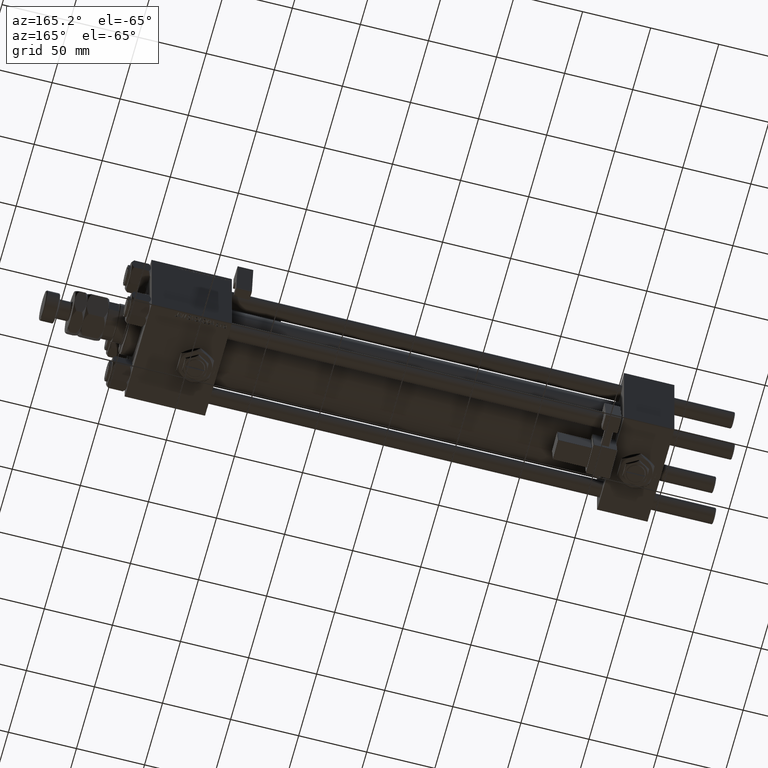
[diagram: clean part render]
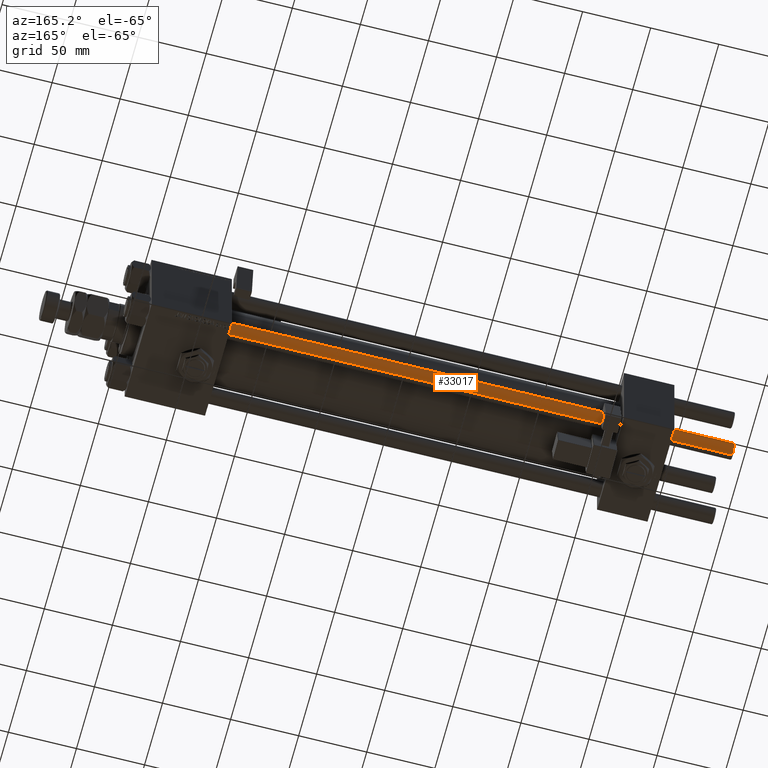
[diagram: same view with one face highlighted and labeled with its STEP entity id]
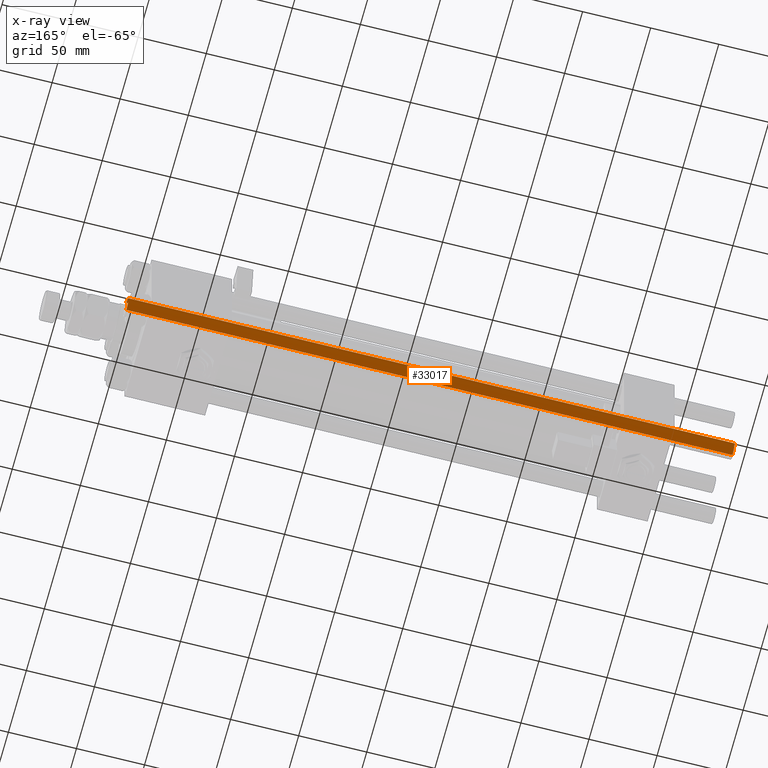
[diagram: x-ray of the same camera — body ghosted, the highlighted face saturated]
A machine part, auxiliary view. The second image highlights one B-rep face of the part: STEP entity #33017.
The next image is the same camera in x-ray: the body ghosted, the highlighted face saturated — about 0% of this face is hidden behind the body in this view.
In plain terms, the highlighted cylindrical surface (edge-blend (fillet) strip) has radius 6 mm, axis along (1, 0, -0).
Its self-contained STEP definition (entity closure, byte-faithful):
#24 = DIRECTION ( 'NONE',  ( -0.000000000000000000, -0.000000000000000000, -1.000000000000000000 ) ) ;
#499 = EDGE_CURVE ( 'NONE', #27468, #15181, #42069, .T. ) ;
#1936 = CARTESIAN_POINT ( 'NONE',  ( 0.000000000000000000, 0.000000000000000000, 445.5000000000003411 ) ) ;
#2968 = VERTEX_POINT ( 'NONE', #33578 ) ;
#3120 = DIRECTION ( 'NONE',  ( -0.000000000000000000, -0.000000000000000000, 1.000000000000000000 ) ) ;
#6805 = CARTESIAN_POINT ( 'NONE',  ( -6.000000000000000888, 0.000000000000000000, 0.5000000000003890221 ) ) ;
#7324 = VECTOR ( 'NONE', #24, 1000.000000000000000 ) ;
#7946 = AXIS2_PLACEMENT_3D ( 'NONE', #24249, #3120, #37447 ) ;
#8438 = ORIENTED_EDGE ( 'NONE', *, *, #499, .T. ) ;
#8763 = CIRCLE ( 'NONE', #29446, 6.000000000000000888 ) ;
#11006 = EDGE_CURVE ( 'NONE', #45757, #15181, #54068, .T. ) ;
#11086 = VECTOR ( 'NONE', #35186, 1000.000000000000000 ) ;
#13783 = CARTESIAN_POINT ( 'NONE',  ( 0.000000000000000000, 0.000000000000000000, 446.0000000000000000 ) ) ;
#14099 = DIRECTION ( 'NONE',  ( 1.000000000000000000, 0.000000000000000000, 0.000000000000000000 ) ) ;
#15181 = VERTEX_POINT ( 'NONE', #6805 ) ;
#16612 = CARTESIAN_POINT ( 'NONE',  ( -6.000000000000000888, 0.000000000000000000, 445.5000000000003411 ) ) ;
#18280 = DIRECTION ( 'NONE',  ( -1.000000000000000000, 0.000000000000000000, 0.000000000000000000 ) ) ;
#19104 = DIRECTION ( 'NONE',  ( -0.000000000000000000, -0.000000000000000000, -1.000000000000000000 ) ) ;
#24249 = CARTESIAN_POINT ( 'NONE',  ( 0.000000000000000000, 0.000000000000000000, 0.5000000000003890221 ) ) ;
#26467 = LINE ( 'NONE', #43904, #11086 ) ;
#27468 = VERTEX_POINT ( 'NONE', #36148 ) ;
#28555 = EDGE_LOOP ( 'NONE', ( #54322, #44174, #8438, #45528 ) ) ;
#29446 = AXIS2_PLACEMENT_3D ( 'NONE', #1936, #35451, #14099 ) ;
#33017 = ADVANCED_FACE ( 'NONE', ( #48608 ), #40186, .T. ) ;
#33578 = CARTESIAN_POINT ( 'NONE',  ( 6.000000000000000888, 7.347880794884119736E-16, 445.5000000000003411 ) ) ;
#34360 = CARTESIAN_POINT ( 'NONE',  ( -6.000000000000000888, 0.000000000000000000, 446.0000000000000000 ) ) ;
#35186 = DIRECTION ( 'NONE',  ( -0.000000000000000000, -0.000000000000000000, -1.000000000000000000 ) ) ;
#35451 = DIRECTION ( 'NONE',  ( 0.000000000000000000, 0.000000000000000000, -1.000000000000000000 ) ) ;
#36148 = CARTESIAN_POINT ( 'NONE',  ( 6.000000000000000888, 7.347880794884119736E-16, 0.5000000000003890221 ) ) ;
#37447 = DIRECTION ( 'NONE',  ( 1.000000000000000000, 0.000000000000000000, 0.000000000000000000 ) ) ;
#39102 = EDGE_CURVE ( 'NONE', #45757, #2968, #8763, .T. ) ;
#40186 = CYLINDRICAL_SURFACE ( 'NONE', #45460, 6.000000000000000888 ) ;
#42069 = CIRCLE ( 'NONE', #7946, 6.000000000000000888 ) ;
#43904 = CARTESIAN_POINT ( 'NONE',  ( 6.000000000000000888, 7.347880794884119736E-16, 446.0000000000000000 ) ) ;
#44174 = ORIENTED_EDGE ( 'NONE', *, *, #44630, .T. ) ;
#44630 = EDGE_CURVE ( 'NONE', #2968, #27468, #26467, .T. ) ;
#45460 = AXIS2_PLACEMENT_3D ( 'NONE', #13783, #19104, #18280 ) ;
#45528 = ORIENTED_EDGE ( 'NONE', *, *, #11006, .F. ) ;
#45757 = VERTEX_POINT ( 'NONE', #16612 ) ;
#48608 = FACE_OUTER_BOUND ( 'NONE', #28555, .T. ) ;
#54068 = LINE ( 'NONE', #34360, #7324 ) ;
#54322 = ORIENTED_EDGE ( 'NONE', *, *, #39102, .T. ) ;